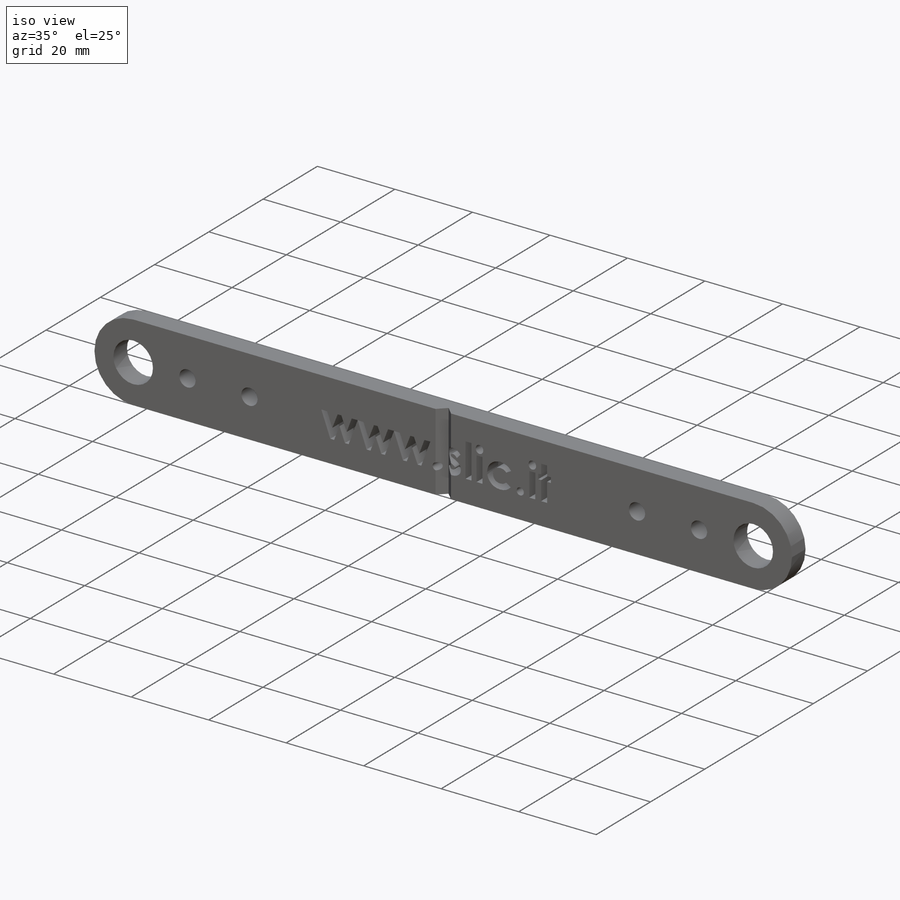
[diagram: iso view]
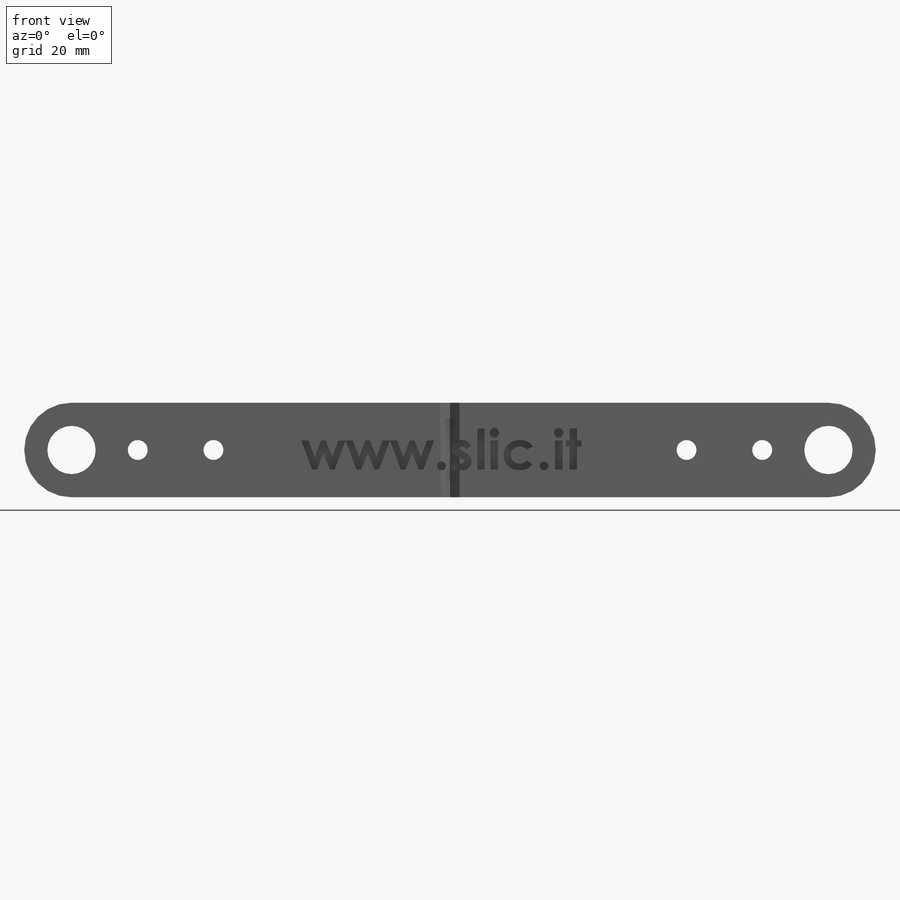
[diagram: front view]
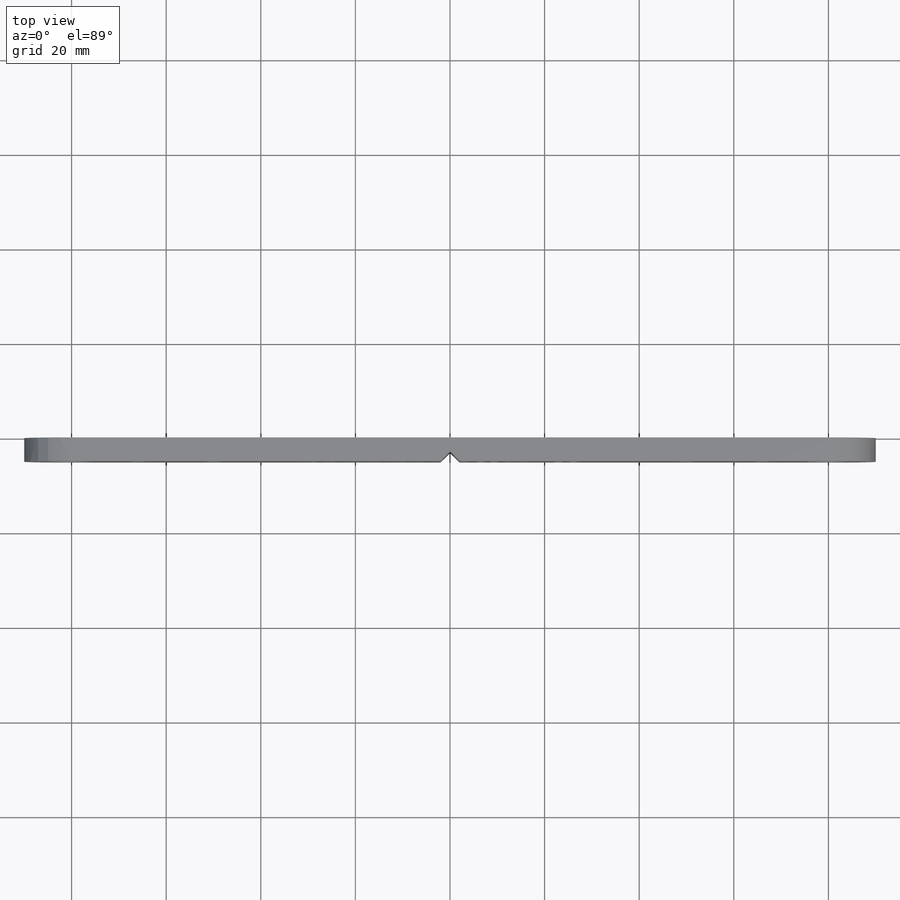
[diagram: top view]
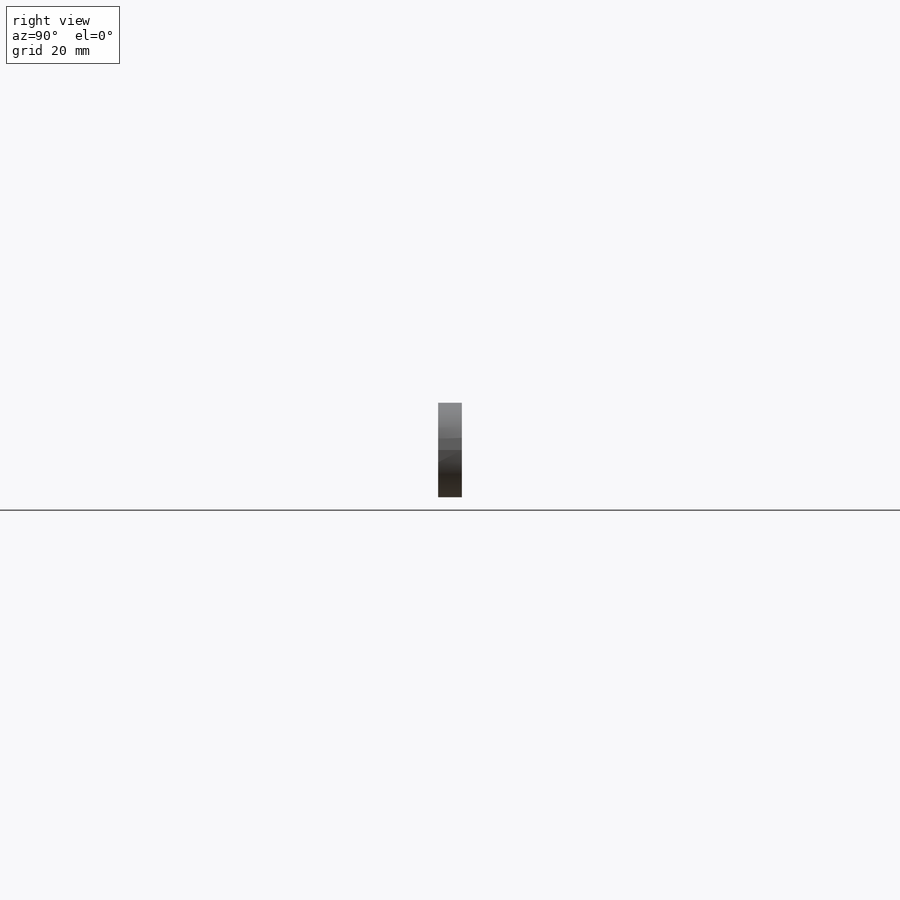
[diagram: right view]
SOLIDWORKS PART (.sldprt)
format: sldprt  version: not decoded by parser v0  size: 338,944 bytes
history: native  units: mm
features: sketch x4, plane x3, cut_extrude x3, material x1, extrude x1 (+8 scaffold rows collapsed)
feature tree (20):
  scaffold x8  (default folders/planes/origin — collapsed)
  material  "Material <not specified>"
  plane  "Plan de face"
  plane  "Plan de dessus"
  plane  "Plan de droite"
  sketch  "Esquisse1"  dims[D1=160.0mm D2=20.0mm D3=80.0mm]
  extrude  "Boss.-Extru.1"  Depth=5mm
  sketch  "Esquisse2"  dims[c1.D1=10.2mm c1.D2=10.2mm c1.D3=4.2mm c1.D4=4.2mm c1.D9=4.2mm c1.D14=4.2mm c2.D3=140.0mm c2.D5=100.0mm c2.D6=50.0mm c2.D7=10.0mm c2.D8=10.0mm c2.D10=14.0mm c2.D11=10.0mm c2.D12=14.0mm c2.D13=10.0mm]
  cut_extrude  "Enlèv. mat.-Extru.1"  [1 undecoded]
  sketch  "Esquisse3"
  cut_extrude  "Enlèv. mat.-Extru.2"  Depth=4mm
  sketch  "Esquisse4"  dims[D4=5.0mm D5=5.0mm D1=4.0mm D2=2.0mm D3=2.0mm D6=13.5mm D7=13.5mm D8=31.0mm]
  cut_extrude  "Enlèv. mat.-Extru.3"  [1 undecoded]
decode coverage: 5 of 8 modeling features carry decoded parameters
note: 2 parameter values undecoded
note: suppression state not decoded; provenance and decode notes live in map.json
